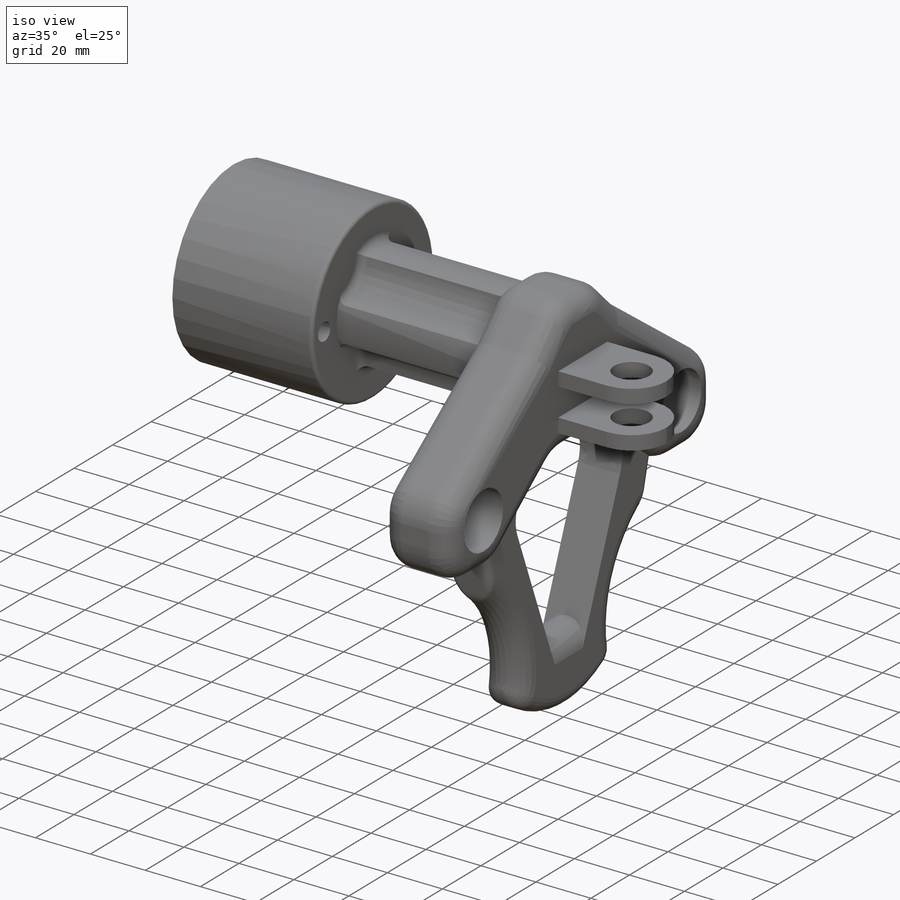
[diagram: iso view]
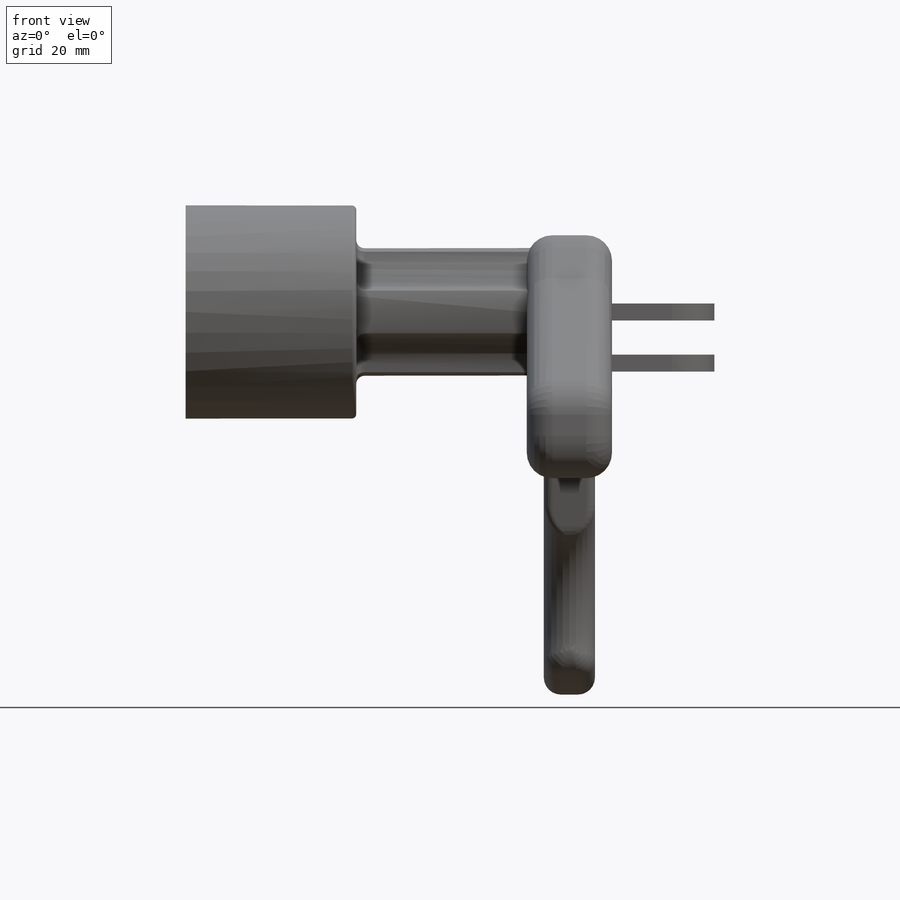
[diagram: front view]
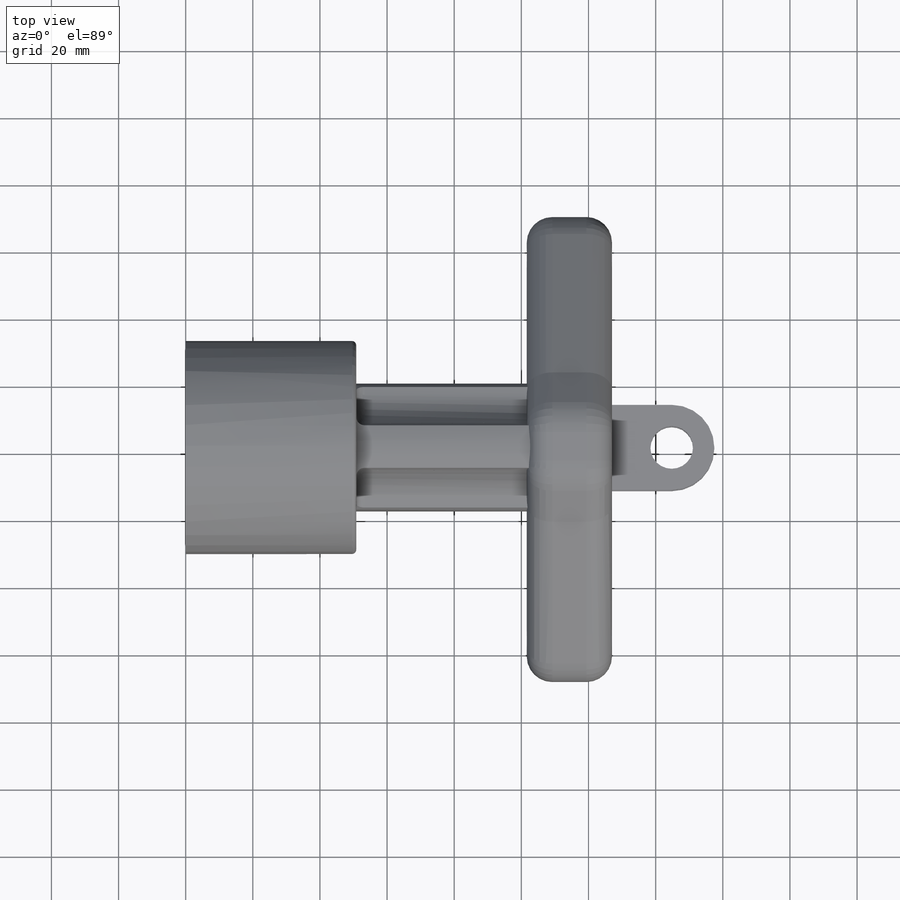
[diagram: top view]
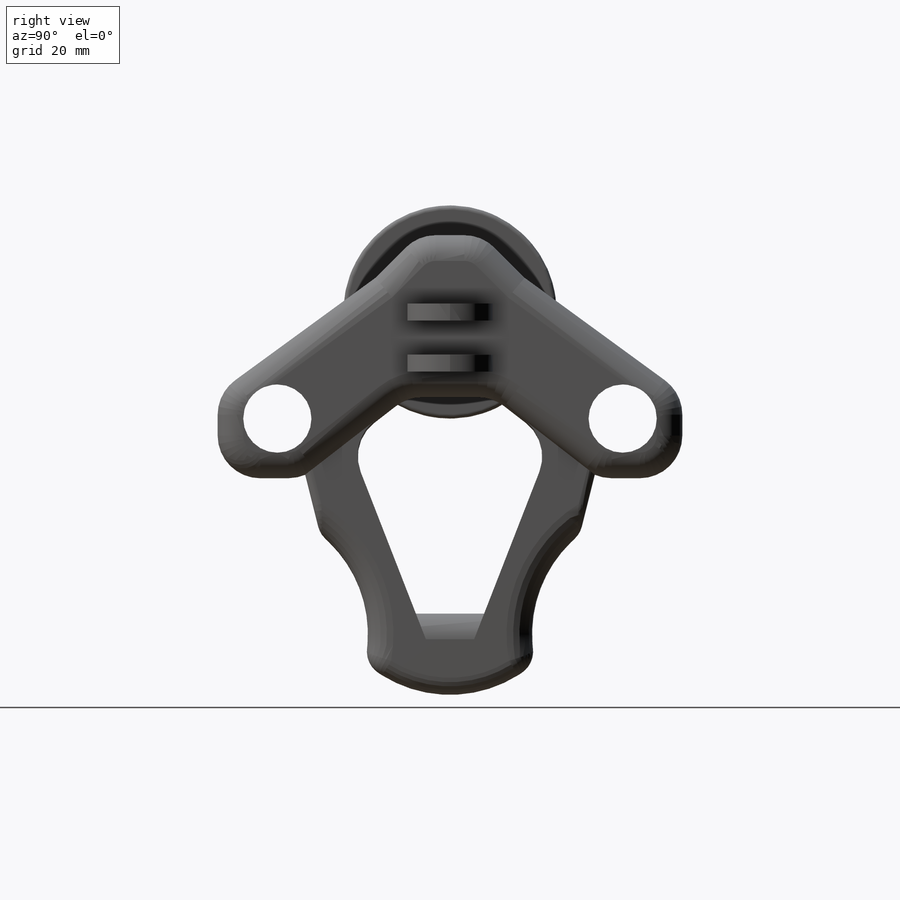
[diagram: right view]
SOLIDWORKS PART (.sldprt)
format: sldprt  version: not decoded by parser v0  size: 929,792 bytes
history: native  units: mm
features: fillet x11, sketch x8, extrude x5, cut_extrude x3, material x1, plane x1 (+13 scaffold rows collapsed)
feature tree (42):
  scaffold x13  (default folders/planes/origin — collapsed)
  material  "Material <not specified>"
  sketch  "Sketch1"  dims[D1=63.5mm]
  extrude  "Boss-Extrude1"  Depth=50.8mm
  sketch  "Sketch2"  dims[D1=50.8mm D2=6.35mm]
  cut_extrude  "Cut-Extrude1"  [1 undecoded]
  sketch  "Sketch3"  dims[D1=38.1mm D4=12.7mm D2=12.7mm D3=12.7mm]
  extrude  "Boss-Extrude2"  Depth=50.8mm
  fillet  "Fillet1"  Radius=2.54mm
  fillet  "Fillet2"  Radius=1.27mm
  sketch  "Sketch4"  dims[c1.D1=22.86mm c1.D2=25.4mm c1.D3=19.05mm c1.D4=12.7mm c1.D5=12.7mm c1.D6=12.7mm c1.D7=31.75mm c1.D8=44.45mm c1.D9=25.4mm c1.D10=2.54mm c2.D7=46.99mm c2.D8=34.29mm]
  extrude  "Boss-Extrude3"  Depth=25.4mm
  fillet  "Fillet3"  Radius=12.7mm
  fillet  "Fillet4"  Radius=7.62mm
  fillet  "Fillet5"  Radius=7.62mm
  sketch  "Sketch5"  dims[D1=20.32mm]
  cut_extrude  "Cut-Extrude2"  [1 undecoded]
  sketch  "Sketch6"  dims[D1=10.16mm D2=5.08mm D3=25.4mm]
  extrude  "Boss-Extrude4"  Depth=30.48mm
  fillet  "Fillet6"  Radius=12.7mm
  sketch  "Sketch7"  dims[D1=12.7mm]
  cut_extrude  "Cut-Extrude3"  [1 undecoded]
  plane  "Plane1"
  sketch  "Sketch8"  dims[c1.D7=38.1mm c1.D8=38.1mm c1.D1=58.42mm c1.D2=20.32mm c1.D3=25.4mm c1.D4=6.35mm c1.D5=50.8mm c1.D6=38.1mm c2.D7=~13.299288mm]
  extrude  "Boss-Extrude5"  Depth=15.24mm
  fillet  "Fillet7"  Radius=5.08mm
  fillet  "Fillet8"  Radius=7.62mm
  fillet  "Fillet9"  Radius=12.7mm
  fillet  "Fillet10"  Radius=7.62mm
  fillet  "Fillet11"  Radius=2.54mm
decode coverage: 24 of 27 modeling features carry decoded parameters
note: ~ marks probable driven/reference dimensions
note: 3 parameter values undecoded
summary: no parameter record found for 3 features
note: suppression state not decoded; provenance and decode notes live in map.json
